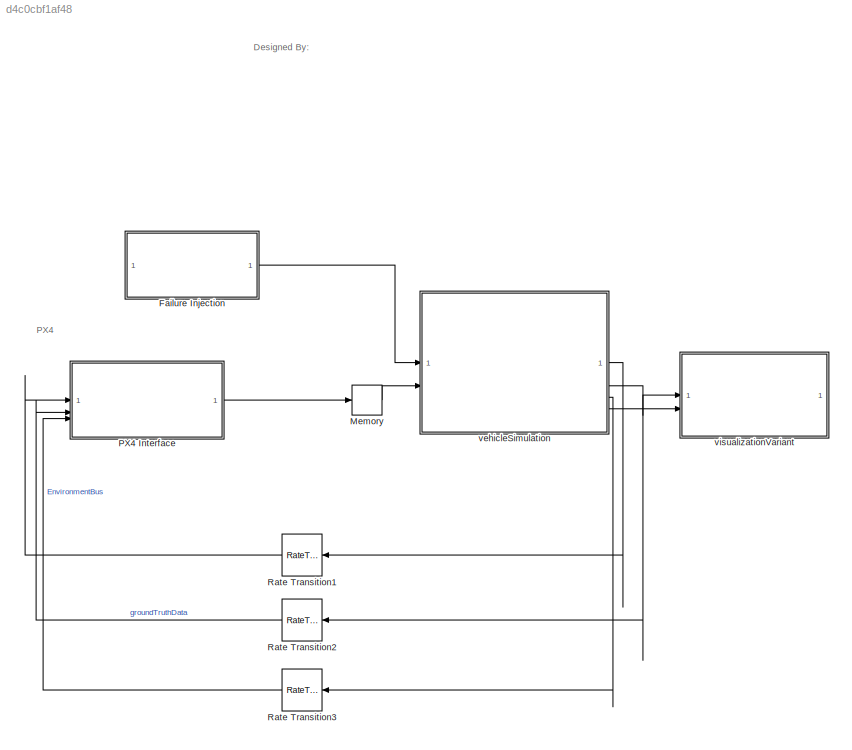
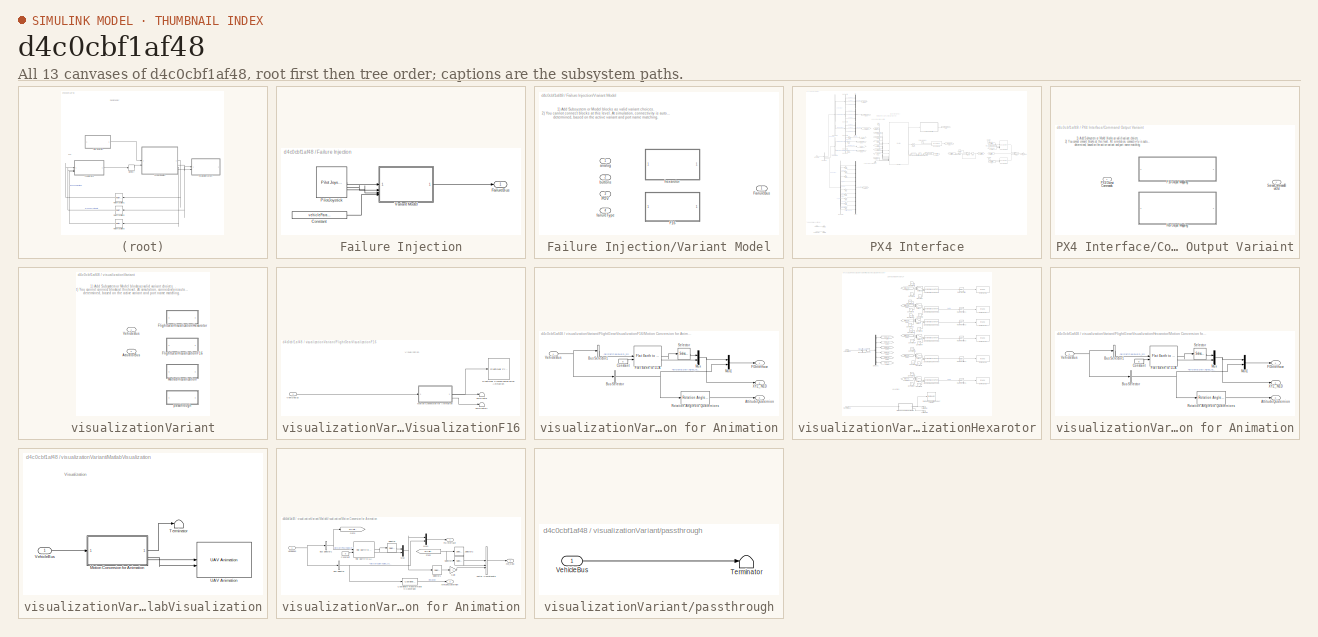
[diagram: thumbnail index - all 13 canvases of the model, root first then tree order]
MODEL slx_d4c0cbf1af48
KIND model
BLOCK [SubSystem] Failure Injection
BLOCK [Constant] Failure Injection/Constant
  Value = vehicleParams.failureType
BLOCK [Outport] Failure Injection/FailureBus
BLOCK [Reference] Failure Injection/PilotJoystick  REF=aerolibanimutils/Pilot Joystick
  LibrarySourceBlock = aerolibanimutils/Pilot Joystick All
  SourceBlock = aerolibanimutils/Pilot Joystick
  SourceType = PilotJoystick
BLOCK [SubSystem] Failure Injection/Variant Model
  Variant = on
BLOCK [ModelReference] Failure Injection/Variant Model/F16
  ModelNameDialog = failureInputReadF16.slx
  ModelReferenceVersion = 1.16
  VariantControl = strcmpi(vehicleParams.type ,"F-16")
BLOCK [Outport] Failure Injection/Variant Model/FailureBus
BLOCK [Inport] Failure Injection/Variant Model/POV
  Port = 3
BLOCK [Inport] Failure Injection/Variant Model/analog
BLOCK [Inport] Failure Injection/Variant Model/buttons
  Port = 2
BLOCK [Inport] Failure Injection/Variant Model/failureType
  Port = 4
BLOCK [ModelReference] Failure Injection/Variant Model/hexarotor
  DisableCoverage = on
  ModelNameDialog = failureInputReadHex.slx
  ModelReferenceVersion = 1.56
  VariantControl = strcmpi(vehicleParams.type ,"hexarotor")
BLOCK [Memory] Memory
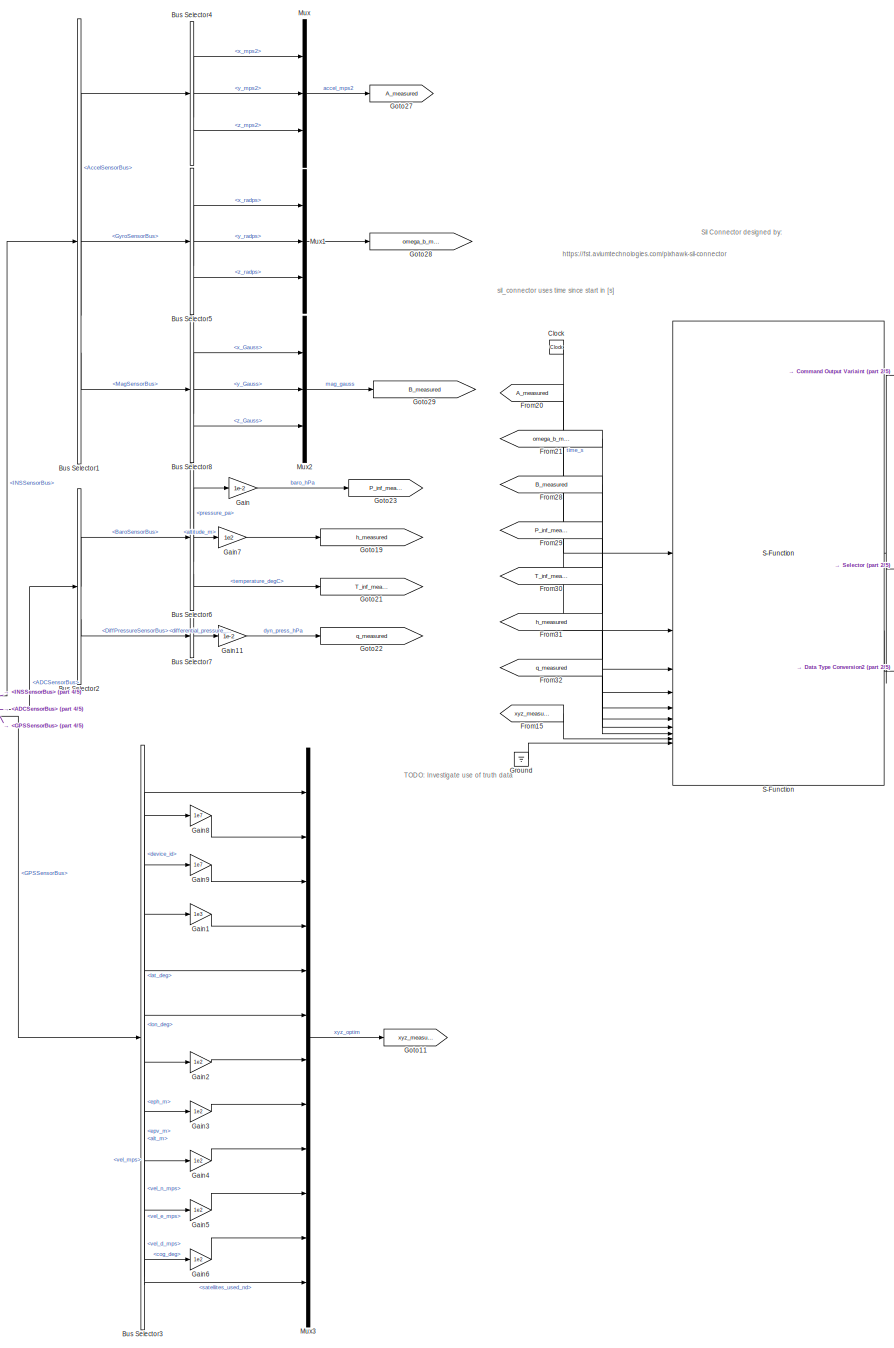
[diagram: PX4 Interface - part 1/5, left side, full height]
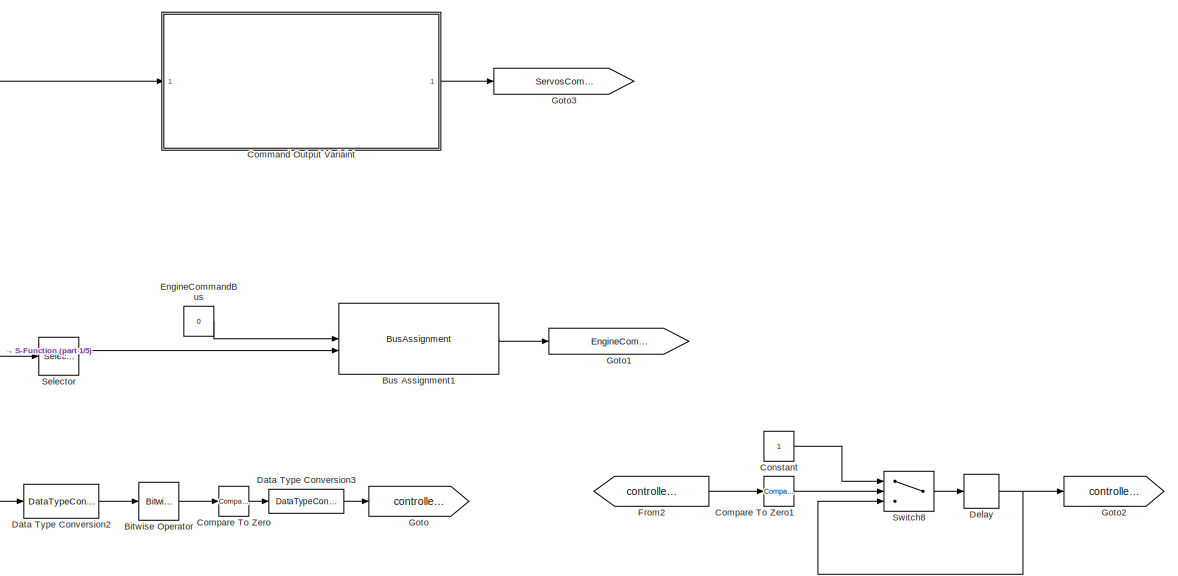
[diagram: PX4 Interface - part 2/5, central region]
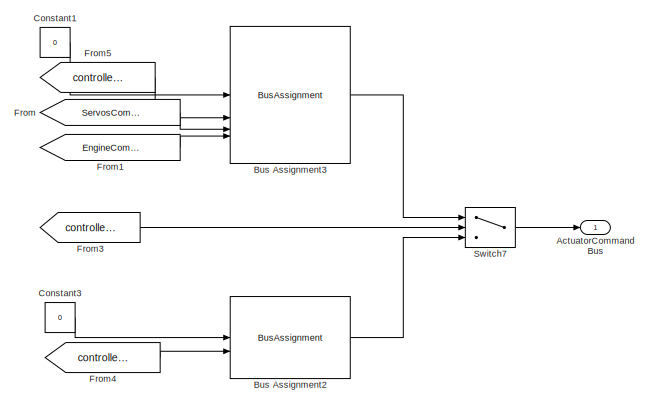
[diagram: PX4 Interface - part 3/5, middle right region]
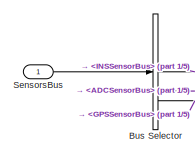
[diagram: PX4 Interface - part 4/5, middle left region]
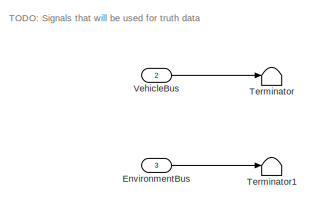
[diagram: PX4 Interface - part 5/5, bottom left region]
BLOCK [SubSystem] PX4 Interface
  VariantControl = strcmpi(vehicleParams.type, "F-16") & strcmpi(vehicleParams.controllerType, "PX4")
BLOCK [Outport] PX4 Interface/ActuatorCommandBus
  LockScale = on
  OutDataTypeStr = Bus: ActuatorCommandBus
BLOCK [Reference] PX4 Interface/Bitwise Operator  REF=simulink/Logic and Bit
Operations/Bitwise
Operator
  SourceBlock = simulink/Logic and Bit\nOperations/Bitwise\nOperator
  SourceType = Bitwise Operator
BLOCK [BusAssignment] PX4 Interface/Bus Assignment1
  AssignedSignals = cmdThrottle_unit
BLOCK [BusAssignment] PX4 Interface/Bus Assignment2
  AssignedSignals = controllerArmed
BLOCK [BusAssignment] PX4 Interface/Bus Assignment3
  AssignedSignals = controllerArmed,ServosCommandBus,EngineCommandBus
BLOCK [BusSelector] PX4 Interface/Bus Selector
  OutputSignals = INSSensorBus,ADCSensorBus,GPSSensorBus
BLOCK [BusSelector] PX4 Interface/Bus Selector1
  OutputSignals = AccelSensorBus,GyroSensorBus,MagSensorBus
BLOCK [BusSelector] PX4 Interface/Bus Selector2
  OutputSignals = BaroSensorBus,DiffPressureSensorBus
BLOCK [BusSelector] PX4 Interface/Bus Selector3
  OutputSignals = device_id,lat_deg,lon_deg,alt_m,eph_m,epv_m,vel_mps,vel_n_mps,vel_e_mps,vel_d_mps,cog_deg,satellites_used_nd
BLOCK [BusSelector] PX4 Interface/Bus Selector4
  OutputSignals = x_mps2,y_mps2,z_mps2
BLOCK [BusSelector] PX4 Interface/Bus Selector5
  OutputSignals = x_radps,y_radps,z_radps
BLOCK [BusSelector] PX4 Interface/Bus Selector6
  OutputSignals = pressure_pa,altitude_m,temperature_degC
BLOCK [BusSelector] PX4 Interface/Bus Selector7
  OutputSignals = differential_pressure_pa
BLOCK [BusSelector] PX4 Interface/Bus Selector8
  OutputSignals = x_Gauss,y_Gauss,z_Gauss
BLOCK [Clock] PX4 Interface/Clock
BLOCK [SubSystem] PX4 Interface/Command Output Variaint
  Variant = on
BLOCK [ModelReference] PX4 Interface/Command Output Variaint/F16 Output Mapping
  DisableCoverage = on
  ModelNameDialog = PX4OutputMappingF16.slx
  ModelReferenceVersion = 1.8
  VariantControl = strcmpi(vehicleParams.type, "F-16") & strcmpi(vehicleParams.controllerType, "PX4")
BLOCK [ModelReference] PX4 Interface/Command Output Variaint/Hex Output Mapping
  ModelNameDialog = PX4OutputMappingHex.slx
  ModelReferenceVersion = 1.15
  VariantControl = strcmpi(vehicleParams.type, "hexarotor") & strcmpi(vehicleParams.controllerType, "PX4")
BLOCK [Inport] PX4 Interface/Command Output Variaint/PX4 Output Commands
  PortDimensions = 16
BLOCK [Outport] PX4 Interface/Command Output Variaint/ServosCommandBusOut
  OutDataTypeStr = Bus: ServosCommandBus
BLOCK [Reference] PX4 Interface/Compare To Zero  REF=simulink/Logic and Bit
Operations/Compare
To Zero
  SourceBlock = simulink/Logic and Bit\nOperations/Compare\nTo Zero
  SourceType = Compare To Zero
BLOCK [Reference] PX4 Interface/Compare To Zero1  REF=simulink/Logic and Bit
Operations/Compare
To Zero
  SourceBlock = simulink/Logic and Bit\nOperations/Compare\nTo Zero
  SourceType = Compare To Zero
BLOCK [Constant] PX4 Interface/Constant
BLOCK [Constant] PX4 Interface/Constant1
  OutDataTypeStr = Bus: ActuatorCommandBus
  Value = 0
BLOCK [Constant] PX4 Interface/Constant3
  OutDataTypeStr = Bus: ActuatorCommandBus
  Value = 0
BLOCK [DataTypeConversion] PX4 Interface/Data Type Conversion2
  OutDataTypeStr = uint8
  RndMeth = Floor
  SaturateOnIntegerOverflow = off
BLOCK [DataTypeConversion] PX4 Interface/Data Type Conversion3
  OutDataTypeStr = double
  RndMeth = Floor
  SaturateOnIntegerOverflow = off
BLOCK [Delay] PX4 Interface/Delay
  DelayLength = 1
  InitialCondition = 0
  InputPortMap = u0
BLOCK [Constant] PX4 Interface/EngineCommandBus
  OutDataTypeStr = Bus: EngineCommandBus
  Value = 0
BLOCK [Inport] PX4 Interface/EnvironmentBus
  OutDataTypeStr = Bus: EnvironmentBus
  Port = 3
BLOCK [From] PX4 Interface/From
  GotoTag = ServosCommandBus
BLOCK [From] PX4 Interface/From1
  GotoTag = EngineCommandBus
BLOCK [From] PX4 Interface/From15
  GotoTag = xyz_measured
BLOCK [From] PX4 Interface/From2
  GotoTag = controllerArmed
BLOCK [From] PX4 Interface/From20
  GotoTag = A_measured
BLOCK [From] PX4 Interface/From21
  GotoTag = omega_b_measured
BLOCK [From] PX4 Interface/From28
  GotoTag = B_measured
BLOCK [From] PX4 Interface/From29
  GotoTag = P_inf_measured
BLOCK [From] PX4 Interface/From3
  GotoTag = controllerInitialized
BLOCK [From] PX4 Interface/From30
  GotoTag = T_inf_measured
BLOCK [From] PX4 Interface/From31
  GotoTag = h_measured
BLOCK [From] PX4 Interface/From32
  GotoTag = q_measured
BLOCK [From] PX4 Interface/From4
  GotoTag = controllerArmed
BLOCK [From] PX4 Interface/From5
  GotoTag = controllerArmed
BLOCK [Gain] PX4 Interface/Gain
  Gain = 1e-2
BLOCK [Gain] PX4 Interface/Gain1
  Gain = 1e3
BLOCK [Gain] PX4 Interface/Gain11
  Gain = 1e-2
BLOCK [Gain] PX4 Interface/Gain2
  Gain = 1e2
BLOCK [Gain] PX4 Interface/Gain3
  Gain = 1e2
BLOCK [Gain] PX4 Interface/Gain4
  Gain = 1e2
BLOCK [Gain] PX4 Interface/Gain5
  Gain = 1e2
BLOCK [Gain] PX4 Interface/Gain6
  Gain = 1e2
BLOCK [Gain] PX4 Interface/Gain7
  Gain = 1e2
BLOCK [Gain] PX4 Interface/Gain8
  Gain = 1e7
BLOCK [Gain] PX4 Interface/Gain9
  Gain = 1e7
BLOCK [Goto] PX4 Interface/Goto
  GotoTag = controllerArmed
BLOCK [Goto] PX4 Interface/Goto1
  GotoTag = EngineCommandBus
BLOCK [Goto] PX4 Interface/Goto11
  GotoTag = xyz_measured
BLOCK [Goto] PX4 Interface/Goto19
  GotoTag = h_measured
BLOCK [Goto] PX4 Interface/Goto2
  GotoTag = controllerInitialized
BLOCK [Goto] PX4 Interface/Goto21
  GotoTag = T_inf_measured
BLOCK [Goto] PX4 Interface/Goto22
  GotoTag = q_measured
BLOCK [Goto] PX4 Interface/Goto23
  GotoTag = P_inf_measured
BLOCK [Goto] PX4 Interface/Goto27
  GotoTag = A_measured
BLOCK [Goto] PX4 Interface/Goto28
  GotoTag = omega_b_measured
BLOCK [Goto] PX4 Interface/Goto29
  GotoTag = B_measured
BLOCK [Goto] PX4 Interface/Goto3
  GotoTag = ServosCommandBus
BLOCK [Ground] PX4 Interface/Ground
BLOCK [Mux] PX4 Interface/Mux
  DisplayOption = bar
  Inputs = 3
BLOCK [Mux] PX4 Interface/Mux1
  DisplayOption = bar
  Inputs = 3
BLOCK [Mux] PX4 Interface/Mux2
  DisplayOption = bar
  Inputs = 3
BLOCK [Mux] PX4 Interface/Mux3
  DisplayOption = bar
  Inputs = 12
BLOCK [S-Function] PX4 Interface/S-Function
  EnableBusSupport = off
  FunctionName = pixhawk_sil_connector
  SFcnIsStateOwnerBlock = off
  SFunctionDeploymentMode = off
BLOCK [Selector] PX4 Interface/Selector
  IndexOptions = Index vector (dialog)
  Indices = [1]
  InputPortWidth = 16
  OutputSizes = 1
BLOCK [Inport] PX4 Interface/SensorsBus
  OutDataTypeStr = Bus: SensorsBus
BLOCK [Switch] PX4 Interface/Switch7
  Criteria = u2 > Threshold
  InputSameDT = off
  SaturateOnIntegerOverflow = off
BLOCK [Switch] PX4 Interface/Switch8
  Criteria = u2 > Threshold
  InputSameDT = off
  SaturateOnIntegerOverflow = off
BLOCK [Terminator] PX4 Interface/Terminator
BLOCK [Terminator] PX4 Interface/Terminator1
BLOCK [Inport] PX4 Interface/VehicleBus
  OutDataTypeStr = Bus: VehicleBus
  Port = 2
BLOCK [RateTransition] Rate Transition1
BLOCK [RateTransition] Rate Transition2
BLOCK [RateTransition] Rate Transition3
BLOCK [ModelReference] vehicleSimulation
  ModelNameDialog = VehiclePlant.slx
  ModelReferenceVersion = 1.47
BLOCK [SubSystem] visualizationVariant
  Variant = on
BLOCK [Inport] visualizationVariant/ActuatorBus
  Port = 2
BLOCK [SubSystem] visualizationVariant/FlightGearVisualizationF16
  TreatAsAtomicUnit = on
  VariantControl = strcmpi(opts.visualizationType, "FlightGear") && strcmpi (vehicleParams.type, "F-16")
BLOCK [Reference] visualizationVariant/FlightGearVisualizationF16/FlightGear Preconfigured 6DoF Animation  REF=aerolibfltsims/FlightGear
Preconfigured
6DoF Animation
  SourceBlock = aerolibfltsims/FlightGear\nPreconfigured\n6DoF Animation
  SourceType = FlightGearQuick6DoFAnimation
BLOCK [SubSystem] visualizationVariant/FlightGearVisualizationF16/Motion Conversion for Animation
BLOCK [Outport] visualizationVariant/FlightGearVisualizationF16/Motion Conversion for Animation/AttitudeQuaternion
  Port = 3
  VectorParamsAs1DForOutWhenUnconnected = off
BLOCK [BusSelector] visualizationVariant/FlightGearVisualizationF16/Motion Conversion for Animation/Bus Selector
  OutputSignals = BodyStatesBus.aircraftEulerAngles_rad
BLOCK [BusSelector] visualizationVariant/FlightGearVisualizationF16/Motion Conversion for Animation/Bus Selector1
  OutputSignals = BodyStatesBus.aircraftPosInNED_m
BLOCK [Constant] visualizationVariant/FlightGearVisualizationF16/Motion Conversion for Animation/Constant
  Value = 0
BLOCK [Outport] visualizationVariant/FlightGearVisualizationF16/Motion Conversion for Animation/FGInterface
  VectorParamsAs1DForOutWhenUnconnected = off
BLOCK [Reference] visualizationVariant/FlightGearVisualizationF16/Motion Conversion for Animation/Flat Earth to LLA  REF=aerolibtransform2/Flat Earth to LLA
  SourceBlock = aerolibtransform2/Flat Earth to LLA
  SourceType = Flat Earth to LLA
BLOCK [Mux] visualizationVariant/FlightGearVisualizationF16/Motion Conversion for Animation/Mux
  DisplayOption = bar
  Inputs = 2
BLOCK [Mux] visualizationVariant/FlightGearVisualizationF16/Motion Conversion for Animation/Mux1
  DisplayOption = bar
  Inputs = 2
BLOCK [Reference] visualizationVariant/FlightGearVisualizationF16/Motion Conversion for Animation/Rotation Angles to Quaternions  REF=sharedtransform/Rotation Angles to Quaternions
  AttributesFormatString = Rotation Order: %<rotationOrder>
  LibrarySourceBlock = aerolibtransform2/Rotation Angles to Quaternions
  SourceBlock = sharedtransform/Rotation Angles to Quaternions
  SourceType = Ang2Quat
BLOCK [Selector] visualizationVariant/FlightGearVisualizationF16/Motion Conversion for Animation/Selector
  IndexMode = Zero-based
  IndexOptions = Index vector (dialog)
  Indices = [1 0]
  InputPortWidth = 2
  OutputSizes = 1
BLOCK [Inport] visualizationVariant/FlightGearVisualizationF16/Motion Conversion for Animation/VehicleBus
  OutDataTypeStr = Bus: VehicleBus
BLOCK [Outport] visualizationVariant/FlightGearVisualizationF16/Motion Conversion for Animation/XYZ_NED
  Port = 2
  VectorParamsAs1DForOutWhenUnconnected = off
BLOCK [Terminator] visualizationVariant/FlightGearVisualizationF16/Terminator
BLOCK [Terminator] visualizationVariant/FlightGearVisualizationF16/Terminator1
BLOCK [Inport] visualizationVariant/FlightGearVisualizationF16/VehicleBus
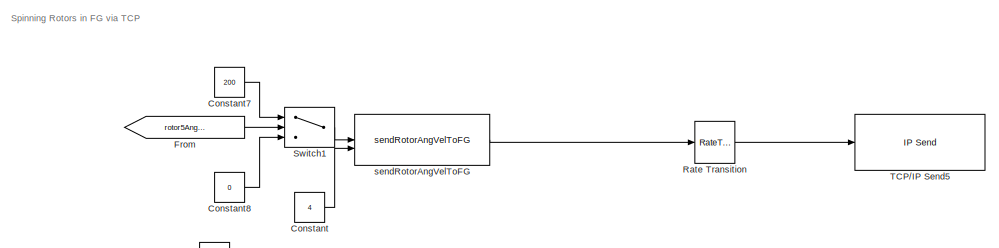
[diagram: visualizationVariant/FlightGearVisualizationHexarotor - part 1/3, top center region]
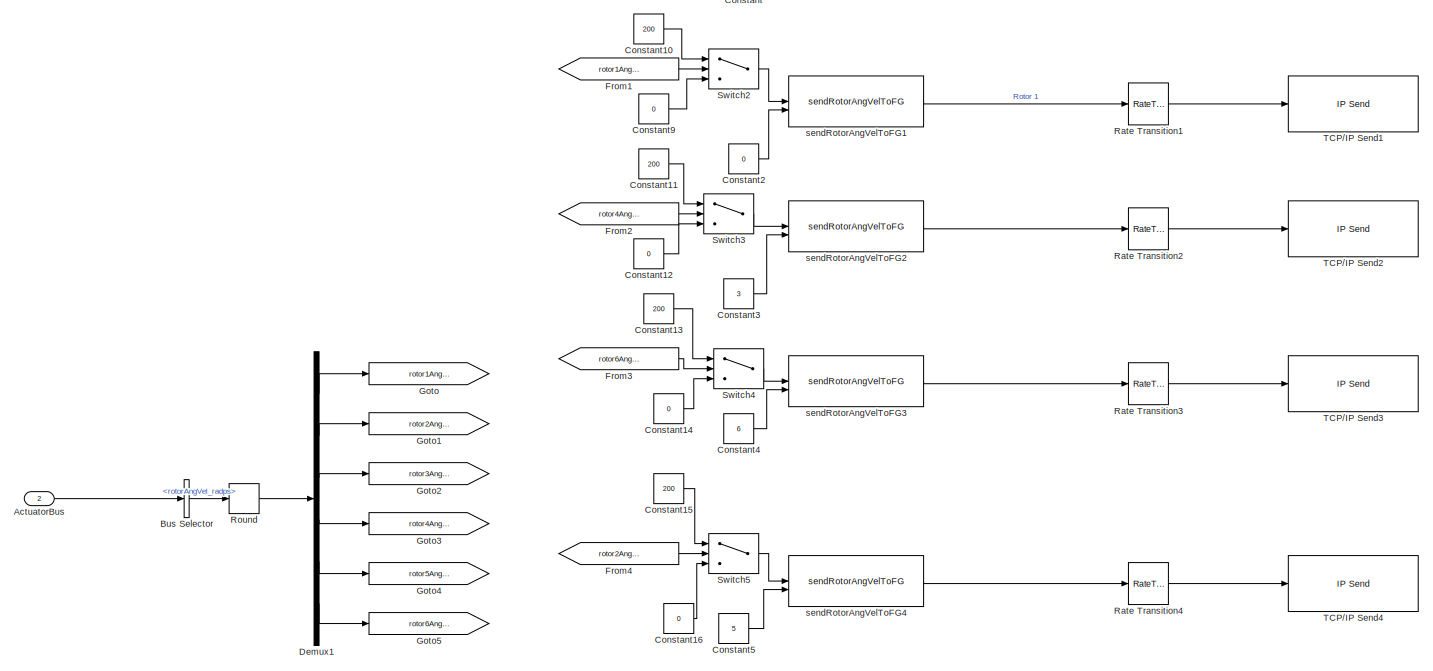
[diagram: visualizationVariant/FlightGearVisualizationHexarotor - part 2/3, full width, middle band]
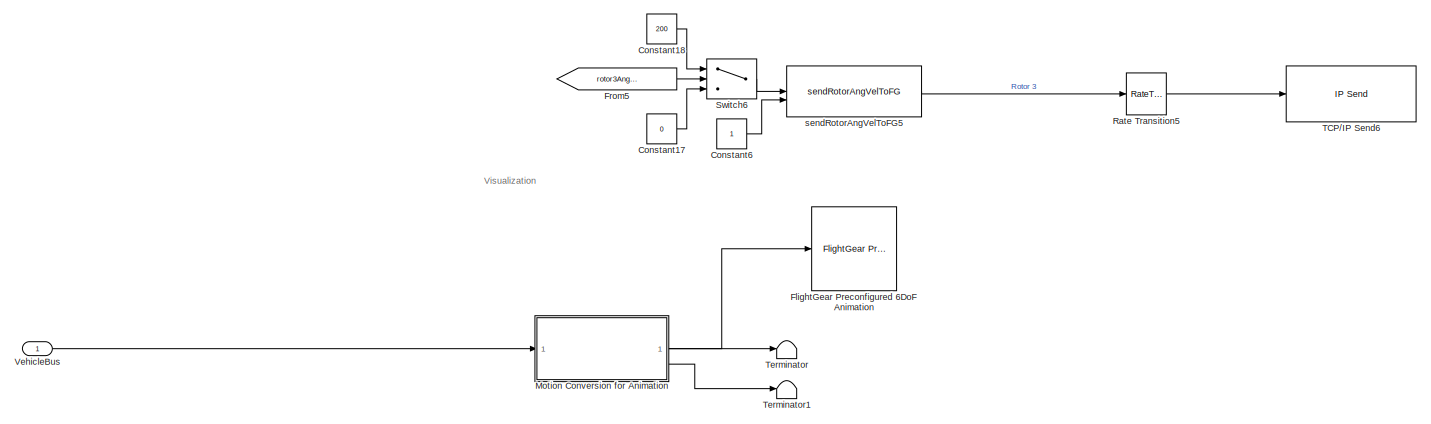
[diagram: visualizationVariant/FlightGearVisualizationHexarotor - part 3/3, full width, bottom band]
BLOCK [SubSystem] visualizationVariant/FlightGearVisualizationHexarotor
  TreatAsAtomicUnit = on
  VariantControl = strcmpi(opts.visualizationType, "FlightGear") && strcmpi (vehicleParams.type, "hexarotor")
BLOCK [Inport] visualizationVariant/FlightGearVisualizationHexarotor/ActuatorBus
  OutDataTypeStr = Bus:ActuatorBus
  Port = 2
BLOCK [BusSelector] visualizationVariant/FlightGearVisualizationHexarotor/Bus Selector
  OutputSignals = PropulsionBus.rotorAngVel_radps
BLOCK [Constant] visualizationVariant/FlightGearVisualizationHexarotor/Constant
  Value = 4
BLOCK [Constant] visualizationVariant/FlightGearVisualizationHexarotor/Constant10
  Value = 200
BLOCK [Constant] visualizationVariant/FlightGearVisualizationHexarotor/Constant11
  Value = 200
BLOCK [Constant] visualizationVariant/FlightGearVisualizationHexarotor/Constant12
  Value = 0
BLOCK [Constant] visualizationVariant/FlightGearVisualizationHexarotor/Constant13
  Value = 200
BLOCK [Constant] visualizationVariant/FlightGearVisualizationHexarotor/Constant14
  Value = 0
BLOCK [Constant] visualizationVariant/FlightGearVisualizationHexarotor/Constant15
  Value = 200
BLOCK [Constant] visualizationVariant/FlightGearVisualizationHexarotor/Constant16
  Value = 0
BLOCK [Constant] visualizationVariant/FlightGearVisualizationHexarotor/Constant17
  Value = 0
BLOCK [Constant] visualizationVariant/FlightGearVisualizationHexarotor/Constant18
  Value = 200
BLOCK [Constant] visualizationVariant/FlightGearVisualizationHexarotor/Constant2
  Value = 0
BLOCK [Constant] visualizationVariant/FlightGearVisualizationHexarotor/Constant3
  Value = 3
BLOCK [Constant] visualizationVariant/FlightGearVisualizationHexarotor/Constant4
  Value = 6
BLOCK [Constant] visualizationVariant/FlightGearVisualizationHexarotor/Constant5
  Value = 5
BLOCK [Constant] visualizationVariant/FlightGearVisualizationHexarotor/Constant6
BLOCK [Constant] visualizationVariant/FlightGearVisualizationHexarotor/Constant7
  Value = 200
BLOCK [Constant] visualizationVariant/FlightGearVisualizationHexarotor/Constant8
  Value = 0
BLOCK [Constant] visualizationVariant/FlightGearVisualizationHexarotor/Constant9
  Value = 0
BLOCK [Demux] visualizationVariant/FlightGearVisualizationHexarotor/Demux1
  Outputs = 6
BLOCK [Reference] visualizationVariant/FlightGearVisualizationHexarotor/FlightGear Preconfigured 6DoF Animation  REF=aerolibfltsims/FlightGear
Preconfigured
6DoF Animation
  SourceBlock = aerolibfltsims/FlightGear\nPreconfigured\n6DoF Animation
  SourceType = FlightGearQuick6DoFAnimation
BLOCK [From] visualizationVariant/FlightGearVisualizationHexarotor/From
  GotoTag = rotor5AngVel_radps
BLOCK [From] visualizationVariant/FlightGearVisualizationHexarotor/From1
  GotoTag = rotor1AngVel_radps
BLOCK [From] visualizationVariant/FlightGearVisualizationHexarotor/From2
  GotoTag = rotor4AngVel_radps
BLOCK [From] visualizationVariant/FlightGearVisualizationHexarotor/From3
  GotoTag = rotor6AngVel_radps
BLOCK [From] visualizationVariant/FlightGearVisualizationHexarotor/From4
  GotoTag = rotor2AngVel_radps
BLOCK [From] visualizationVariant/FlightGearVisualizationHexarotor/From5
  GotoTag = rotor3AngVel_radps
BLOCK [Goto] visualizationVariant/FlightGearVisualizationHexarotor/Goto
  GotoTag = rotor1AngVel_radps
BLOCK [Goto] visualizationVariant/FlightGearVisualizationHexarotor/Goto1
  GotoTag = rotor2AngVel_radps
BLOCK [Goto] visualizationVariant/FlightGearVisualizationHexarotor/Goto2
  GotoTag = rotor3AngVel_radps
BLOCK [Goto] visualizationVariant/FlightGearVisualizationHexarotor/Goto3
  GotoTag = rotor4AngVel_radps
BLOCK [Goto] visualizationVariant/FlightGearVisualizationHexarotor/Goto4
  GotoTag = rotor5AngVel_radps
BLOCK [Goto] visualizationVariant/FlightGearVisualizationHexarotor/Goto5
  GotoTag = rotor6AngVel_radps
BLOCK [SubSystem] visualizationVariant/FlightGearVisualizationHexarotor/Motion Conversion for Animation
BLOCK [Outport] visualizationVariant/FlightGearVisualizationHexarotor/Motion Conversion for Animation/AttitudeQuaternion
  Port = 3
  VectorParamsAs1DForOutWhenUnconnected = off
BLOCK [BusSelector] visualizationVariant/FlightGearVisualizationHexarotor/Motion Conversion for Animation/Bus Selector
  OutputSignals = BodyStatesBus.aircraftEulerAngles_rad
BLOCK [BusSelector] visualizationVariant/FlightGearVisualizationHexarotor/Motion Conversion for Animation/Bus Selector1
  OutputSignals = BodyStatesBus.aircraftPosInNED_m
BLOCK [Constant] visualizationVariant/FlightGearVisualizationHexarotor/Motion Conversion for Animation/Constant
  Value = 0
BLOCK [Outport] visualizationVariant/FlightGearVisualizationHexarotor/Motion Conversion for Animation/FGInterface
  VectorParamsAs1DForOutWhenUnconnected = off
BLOCK [Reference] visualizationVariant/FlightGearVisualizationHexarotor/Motion Conversion for Animation/Flat Earth to LLA  REF=aerolibtransform2/Flat Earth to LLA
  SourceBlock = aerolibtransform2/Flat Earth to LLA
  SourceType = Flat Earth to LLA
BLOCK [Mux] visualizationVariant/FlightGearVisualizationHexarotor/Motion Conversion for Animation/Mux
  DisplayOption = bar
  Inputs = 2
BLOCK [Mux] visualizationVariant/FlightGearVisualizationHexarotor/Motion Conversion for Animation/Mux1
  DisplayOption = bar
  Inputs = 2
BLOCK [Reference] visualizationVariant/FlightGearVisualizationHexarotor/Motion Conversion for Animation/Rotation Angles to Quaternions  REF=sharedtransform/Rotation Angles to Quaternions
  AttributesFormatString = Rotation Order: %<rotationOrder>
  LibrarySourceBlock = aerolibtransform2/Rotation Angles to Quaternions
  SourceBlock = sharedtransform/Rotation Angles to Quaternions
  SourceType = Ang2Quat
BLOCK [Selector] visualizationVariant/FlightGearVisualizationHexarotor/Motion Conversion for Animation/Selector
  IndexMode = Zero-based
  IndexOptions = Index vector (dialog)
  Indices = [1 0]
  InputPortWidth = 2
  OutputSizes = 1
BLOCK [Inport] visualizationVariant/FlightGearVisualizationHexarotor/Motion Conversion for Animation/VehicleBus
  OutDataTypeStr = Bus: VehicleBus
BLOCK [Outport] visualizationVariant/FlightGearVisualizationHexarotor/Motion Conversion for Animation/XYZ_NED
  Port = 2
  VectorParamsAs1DForOutWhenUnconnected = off
BLOCK [RateTransition] visualizationVariant/FlightGearVisualizationHexarotor/Rate Transition
  OutPortSampleTime = visualizationParams.flightGearFreq_Hz
BLOCK [RateTransition] visualizationVariant/FlightGearVisualizationHexarotor/Rate Transition1
  OutPortSampleTime = visualizationParams.flightGearFreq_Hz
BLOCK [RateTransition] visualizationVariant/FlightGearVisualizationHexarotor/Rate Transition2
  OutPortSampleTime = visualizationParams.flightGearFreq_Hz
BLOCK [RateTransition] visualizationVariant/FlightGearVisualizationHexarotor/Rate Transition3
  OutPortSampleTime = visualizationParams.flightGearFreq_Hz
BLOCK [RateTransition] visualizationVariant/FlightGearVisualizationHexarotor/Rate Transition4
  OutPortSampleTime = visualizationParams.flightGearFreq_Hz
BLOCK [RateTransition] visualizationVariant/FlightGearVisualizationHexarotor/Rate Transition5
  OutPortSampleTime = visualizationParams.flightGearFreq_Hz
BLOCK [Rounding] visualizationVariant/FlightGearVisualizationHexarotor/Round
  Operator = round
BLOCK [Switch] visualizationVariant/FlightGearVisualizationHexarotor/Switch1
  Criteria = u2 > Threshold
  InputSameDT = off
  SaturateOnIntegerOverflow = off
BLOCK [Switch] visualizationVariant/FlightGearVisualizationHexarotor/Switch2
  Criteria = u2 > Threshold
  InputSameDT = off
  SaturateOnIntegerOverflow = off
BLOCK [Switch] visualizationVariant/FlightGearVisualizationHexarotor/Switch3
  Criteria = u2 > Threshold
  InputSameDT = off
  SaturateOnIntegerOverflow = off
BLOCK [Switch] visualizationVariant/FlightGearVisualizationHexarotor/Switch4
  Criteria = u2 > Threshold
  InputSameDT = off
  SaturateOnIntegerOverflow = off
BLOCK [Switch] visualizationVariant/FlightGearVisualizationHexarotor/Switch5
  Criteria = u2 > Threshold
  InputSameDT = off
  SaturateOnIntegerOverflow = off
BLOCK [Switch] visualizationVariant/FlightGearVisualizationHexarotor/Switch6
  Criteria = u2 > Threshold
  InputSameDT = off
  SaturateOnIntegerOverflow = off
BLOCK [Reference] visualizationVariant/FlightGearVisualizationHexarotor/TCP//IP Send1  REF=instrumentlib/TCP//IP Send
  SourceBlock = instrumentlib/TCP//IP Send
  SourceType = instrument.system.TCPIPSend
BLOCK [Reference] visualizationVariant/FlightGearVisualizationHexarotor/TCP//IP Send2  REF=instrumentlib/TCP//IP Send
  SourceBlock = instrumentlib/TCP//IP Send
  SourceType = instrument.system.TCPIPSend
BLOCK [Reference] visualizationVariant/FlightGearVisualizationHexarotor/TCP//IP Send3  REF=instrumentlib/TCP//IP Send
  SourceBlock = instrumentlib/TCP//IP Send
  SourceType = instrument.system.TCPIPSend
BLOCK [Reference] visualizationVariant/FlightGearVisualizationHexarotor/TCP//IP Send4  REF=instrumentlib/TCP//IP Send
  SourceBlock = instrumentlib/TCP//IP Send
  SourceType = instrument.system.TCPIPSend
BLOCK [Reference] visualizationVariant/FlightGearVisualizationHexarotor/TCP//IP Send5  REF=instrumentlib/TCP//IP Send
  SourceBlock = instrumentlib/TCP//IP Send
  SourceType = instrument.system.TCPIPSend
BLOCK [Reference] visualizationVariant/FlightGearVisualizationHexarotor/TCP//IP Send6  REF=instrumentlib/TCP//IP Send
  SourceBlock = instrumentlib/TCP//IP Send
  SourceType = instrument.system.TCPIPSend
BLOCK [Terminator] visualizationVariant/FlightGearVisualizationHexarotor/Terminator
BLOCK [Terminator] visualizationVariant/FlightGearVisualizationHexarotor/Terminator1
BLOCK [Inport] visualizationVariant/FlightGearVisualizationHexarotor/VehicleBus
BLOCK [Reference] visualizationVariant/FlightGearVisualizationHexarotor/sendRotorAngVelToFG  REF=flightGearInterfaceLibrary/sendRotorAngVelToFG
  SourceBlock = flightGearInterfaceLibrary/sendRotorAngVelToFG
  SourceType = SubSystem
BLOCK [Reference] visualizationVariant/FlightGearVisualizationHexarotor/sendRotorAngVelToFG1  REF=flightGearInterfaceLibrary/sendRotorAngVelToFG
  SourceBlock = flightGearInterfaceLibrary/sendRotorAngVelToFG
  SourceType = SubSystem
BLOCK [Reference] visualizationVariant/FlightGearVisualizationHexarotor/sendRotorAngVelToFG2  REF=flightGearInterfaceLibrary/sendRotorAngVelToFG
  SourceBlock = flightGearInterfaceLibrary/sendRotorAngVelToFG
  SourceType = SubSystem
BLOCK [Reference] visualizationVariant/FlightGearVisualizationHexarotor/sendRotorAngVelToFG3  REF=flightGearInterfaceLibrary/sendRotorAngVelToFG
  SourceBlock = flightGearInterfaceLibrary/sendRotorAngVelToFG
  SourceType = SubSystem
BLOCK [Reference] visualizationVariant/FlightGearVisualizationHexarotor/sendRotorAngVelToFG4  REF=flightGearInterfaceLibrary/sendRotorAngVelToFG
  SourceBlock = flightGearInterfaceLibrary/sendRotorAngVelToFG
  SourceType = SubSystem
BLOCK [Reference] visualizationVariant/FlightGearVisualizationHexarotor/sendRotorAngVelToFG5  REF=flightGearInterfaceLibrary/sendRotorAngVelToFG
  SourceBlock = flightGearInterfaceLibrary/sendRotorAngVelToFG
  SourceType = SubSystem
BLOCK [SubSystem] visualizationVariant/MatlabVisualization
  VariantControl = strcmpi(opts.visualizationType, "Matlab")
BLOCK [SubSystem] visualizationVariant/MatlabVisualization/Motion Conversion for Animation
BLOCK [Outport] visualizationVariant/MatlabVisualization/Motion Conversion for Animation/AttitudeQuaternion
  Port = 3
  VectorParamsAs1DForOutWhenUnconnected = off
BLOCK [BusSelector] visualizationVariant/MatlabVisualization/Motion Conversion for Animation/Bus Selector
  OutputSignals = BodyStates.aircraftEulerAngles_rad
BLOCK [BusSelector] visualizationVariant/MatlabVisualization/Motion Conversion for Animation/Bus Selector1
  OutputSignals = BodyStates.aircraftPosInNED_m
BLOCK [Constant] visualizationVariant/MatlabVisualization/Motion Conversion for Animation/Constant
  Value = 0
BLOCK [Reference] visualizationVariant/MatlabVisualization/Motion Conversion for Animation/Coordinate Transformation Conversion  REF=robotcorelib/Coordinate Transformation Conversion
  NameLocation = top
  SourceBlock = robotcorelib/Coordinate Transformation Conversion
  SourceType = robotics.slcore.internal.block.CoordinateTransformationConversion
BLOCK [Outport] visualizationVariant/MatlabVisualization/Motion Conversion for Animation/FGInterface
  VectorParamsAs1DForOutWhenUnconnected = off
BLOCK [Reference] visualizationVariant/MatlabVisualization/Motion Conversion for Animation/Flat Earth to LLA  REF=aerolibtransform2/Flat Earth to LLA
  SourceBlock = aerolibtransform2/Flat Earth to LLA
  SourceType = Flat Earth to LLA
BLOCK [From] visualizationVariant/MatlabVisualization/Motion Conversion for Animation/From
  GotoTag = aircraftPosInNED_m
BLOCK [Gain] visualizationVariant/MatlabVisualization/Motion Conversion for Animation/Gain
  Gain = -1
BLOCK [Goto] visualizationVariant/MatlabVisualization/Motion Conversion for Animation/Goto
  GotoTag = aircraftPosInNED_m
BLOCK [Mux] visualizationVariant/MatlabVisualization/Motion Conversion for Animation/Mux
  DisplayOption = bar
  Inputs = 2
BLOCK [Mux] visualizationVariant/MatlabVisualization/Motion Conversion for Animation/Mux1
  DisplayOption = bar
  Inputs = 2
BLOCK [Selector] visualizationVariant/MatlabVisualization/Motion Conversion for Animation/Selector
  IndexMode = Zero-based
  IndexOptions = Index vector (dialog)
  Indices = [1 0]
  InputPortWidth = 2
  OutputSizes = 1
BLOCK [Selector] visualizationVariant/MatlabVisualization/Motion Conversion for Animation/Selector1
  IndexOptions = Index vector (dialog)
  Indices = 3
  InputPortWidth = 3
  OutputSizes = 1
BLOCK [Selector] visualizationVariant/MatlabVisualization/Motion Conversion for Animation/Selector2
  IndexOptions = Index vector (dialog)
  Indices = 1
  InputPortWidth = 3
  OutputSizes = 1
BLOCK [Selector] visualizationVariant/MatlabVisualization/Motion Conversion for Animation/Selector3
  IndexOptions = Index vector (dialog)
  Indices = 2
  InputPortWidth = 3
  OutputSizes = 1
BLOCK [Concatenate] visualizationVariant/MatlabVisualization/Motion Conversion for Animation/Vector Concatenate
  NumInputs = 3
BLOCK [Inport] visualizationVariant/MatlabVisualization/Motion Conversion for Animation/VehicleBus
  OutDataTypeStr = Bus: VehicleBus
BLOCK [Outport] visualizationVariant/MatlabVisualization/Motion Conversion for Animation/XYZ_NED
  Port = 2
  VectorParamsAs1DForOutWhenUnconnected = off
BLOCK [Terminator] visualizationVariant/MatlabVisualization/Terminator
BLOCK [Reference] visualizationVariant/MatlabVisualization/UAV Animation  REF=uavutilslib/UAV Animation
  SourceBlock = uavutilslib/UAV Animation
  SourceType = uav.sluav.internal.system.UAVAnimation
BLOCK [Inport] visualizationVariant/MatlabVisualization/VehicleBus
BLOCK [Inport] visualizationVariant/VehicleBus
BLOCK [SubSystem] visualizationVariant/passthrough
  VariantControl = strcmpi(opts.visualizationType, "PassThrough")
BLOCK [Terminator] visualizationVariant/passthrough/Terminator
BLOCK [Inport] visualizationVariant/passthrough/VehicleBus
ANNOTATION (root): Designed By:
ANNOTATION (root): PX4
ANNOTATION Failure Injection/Variant Model: 1) Add Subsystem or Model blocks as valid variant choices. 2) You cannot connect blocks at this level. At simulation, connectivity is automatically determined, based on the active variant and port name matching.
ANNOTATION PX4 Interface: https://fst.aviumtechnologies.com/pixhawk-sil-connector
ANNOTATION PX4 Interface: Sil Connector designed by:
ANNOTATION PX4 Interface: TODO: Investigate use of truth data
ANNOTATION PX4 Interface: TODO: Signals that will be used for truth data
ANNOTATION PX4 Interface: sil_connector uses time since start in [s]
ANNOTATION PX4 Interface/Command Output Variaint: 1) Add Subsystem or Model blocks as valid variant choices. 2) You cannot connect blocks at this level. At simulation, connectivity is automatically determined, based on the active variant and port name matching.
ANNOTATION visualizationVariant: 1) Add Subsystem or Model blocks as valid variant choices. 2) You cannot connect blocks at this level. At simulation, connectivity is automatically determined, based on the active variant and port name matching.
ANNOTATION visualizationVariant/FlightGearVisualizationF16: Visualization
ANNOTATION visualizationVariant/FlightGearVisualizationHexarotor: Spinning Rotors in FG via TCP
ANNOTATION visualizationVariant/FlightGearVisualizationHexarotor: Visualization
ANNOTATION visualizationVariant/MatlabVisualization: Visualization
LINE Failure Injection/Constant:1 -> Failure Injection/Variant Model:4
LINE Failure Injection/PilotJoystick:1 -> Failure Injection/Variant Model:1
LINE Failure Injection/PilotJoystick:2 -> Failure Injection/Variant Model:2
LINE Failure Injection/PilotJoystick:3 -> Failure Injection/Variant Model:3
LINE Failure Injection/Variant Model:1 -> Failure Injection/FailureBus:1
LINE Failure Injection:1 -> vehicleSimulation:1
LINE Memory:1 -> vehicleSimulation:2
LINE PX4 Interface/Bitwise Operator:1 -> PX4 Interface/Compare To Zero:1
LINE PX4 Interface/Bus Assignment1:1 -> PX4 Interface/Goto1:1
LINE PX4 Interface/Bus Assignment2:1 -> PX4 Interface/Switch7:3
LINE PX4 Interface/Bus Assignment3:1 -> PX4 Interface/Switch7:1
LINE PX4 Interface/Bus Selector1:1 -> PX4 Interface/Bus Selector4:1
LINE PX4 Interface/Bus Selector1:2 -> PX4 Interface/Bus Selector5:1
LINE PX4 Interface/Bus Selector1:3 -> PX4 Interface/Bus Selector8:1
LINE PX4 Interface/Bus Selector2:1 -> PX4 Interface/Bus Selector6:1
LINE PX4 Interface/Bus Selector2:2 -> PX4 Interface/Bus Selector7:1
LINE PX4 Interface/Bus Selector3:1 -> PX4 Interface/Mux3:1
LINE PX4 Interface/Bus Selector3:10 -> PX4 Interface/Gain5:1
LINE PX4 Interface/Bus Selector3:11 -> PX4 Interface/Gain6:1
LINE PX4 Interface/Bus Selector3:12 -> PX4 Interface/Mux3:12
LINE PX4 Interface/Bus Selector3:2 -> PX4 Interface/Gain8:1
LINE PX4 Interface/Bus Selector3:3 -> PX4 Interface/Gain9:1
LINE PX4 Interface/Bus Selector3:4 -> PX4 Interface/Gain1:1
LINE PX4 Interface/Bus Selector3:5 -> PX4 Interface/Mux3:5
LINE PX4 Interface/Bus Selector3:6 -> PX4 Interface/Mux3:6
LINE PX4 Interface/Bus Selector3:7 -> PX4 Interface/Gain2:1
LINE PX4 Interface/Bus Selector3:8 -> PX4 Interface/Gain3:1
LINE PX4 Interface/Bus Selector3:9 -> PX4 Interface/Gain4:1
LINE PX4 Interface/Bus Selector4:1 -> PX4 Interface/Mux:1
LINE PX4 Interface/Bus Selector4:2 -> PX4 Interface/Mux:2
LINE PX4 Interface/Bus Selector4:3 -> PX4 Interface/Mux:3
LINE PX4 Interface/Bus Selector5:1 -> PX4 Interface/Mux1:1
LINE PX4 Interface/Bus Selector5:2 -> PX4 Interface/Mux1:2
LINE PX4 Interface/Bus Selector5:3 -> PX4 Interface/Mux1:3
LINE PX4 Interface/Bus Selector6:1 -> PX4 Interface/Gain:1
LINE PX4 Interface/Bus Selector6:2 -> PX4 Interface/Gain7:1
LINE PX4 Interface/Bus Selector6:3 -> PX4 Interface/Goto21:1
LINE PX4 Interface/Bus Selector7:1 -> PX4 Interface/Gain11:1
LINE PX4 Interface/Bus Selector8:1 -> PX4 Interface/Mux2:1
LINE PX4 Interface/Bus Selector8:2 -> PX4 Interface/Mux2:2
LINE PX4 Interface/Bus Selector8:3 -> PX4 Interface/Mux2:3
LINE PX4 Interface/Bus Selector:1 -> PX4 Interface/Bus Selector1:1
LINE PX4 Interface/Bus Selector:2 -> PX4 Interface/Bus Selector2:1
LINE PX4 Interface/Bus Selector:3 -> PX4 Interface/Bus Selector3:1
LINE PX4 Interface/Clock:1 -> PX4 Interface/S-Function:1
LINE PX4 Interface/Command Output Variaint:1 -> PX4 Interface/Goto3:1
LINE PX4 Interface/Compare To Zero1:1 -> PX4 Interface/Switch8:2
LINE PX4 Interface/Compare To Zero:1 -> PX4 Interface/Data Type Conversion3:1
LINE PX4 Interface/Constant1:1 -> PX4 Interface/Bus Assignment3:1
LINE PX4 Interface/Constant3:1 -> PX4 Interface/Bus Assignment2:1
LINE PX4 Interface/Constant:1 -> PX4 Interface/Switch8:1
LINE PX4 Interface/Data Type Conversion2:1 -> PX4 Interface/Bitwise Operator:1
LINE PX4 Interface/Data Type Conversion3:1 -> PX4 Interface/Goto:1
NET PX4 Interface/Delay:1 -> PX4 Interface/Goto2:1, PX4 Interface/Switch8:3
LINE PX4 Interface/EngineCommandBus:1 -> PX4 Interface/Bus Assignment1:1
LINE PX4 Interface/EnvironmentBus:1 -> PX4 Interface/Terminator1:1
LINE PX4 Interface/From15:1 -> PX4 Interface/S-Function:9
LINE PX4 Interface/From1:1 -> PX4 Interface/Bus Assignment3:4
LINE PX4 Interface/From20:1 -> PX4 Interface/S-Function:2
LINE PX4 Interface/From21:1 -> PX4 Interface/S-Function:3
LINE PX4 Interface/From28:1 -> PX4 Interface/S-Function:4
LINE PX4 Interface/From29:1 -> PX4 Interface/S-Function:5
LINE PX4 Interface/From2:1 -> PX4 Interface/Compare To Zero1:1
LINE PX4 Interface/From30:1 -> PX4 Interface/S-Function:6
LINE PX4 Interface/From31:1 -> PX4 Interface/S-Function:7
LINE PX4 Interface/From32:1 -> PX4 Interface/S-Function:8
LINE PX4 Interface/From3:1 -> PX4 Interface/Switch7:2
LINE PX4 Interface/From4:1 -> PX4 Interface/Bus Assignment2:2
LINE PX4 Interface/From5:1 -> PX4 Interface/Bus Assignment3:2
LINE PX4 Interface/From:1 -> PX4 Interface/Bus Assignment3:3
LINE PX4 Interface/Gain11:1 -> PX4 Interface/Goto22:1
LINE PX4 Interface/Gain1:1 -> PX4 Interface/Mux3:4
LINE PX4 Interface/Gain2:1 -> PX4 Interface/Mux3:7
LINE PX4 Interface/Gain3:1 -> PX4 Interface/Mux3:8
LINE PX4 Interface/Gain4:1 -> PX4 Interface/Mux3:9
LINE PX4 Interface/Gain5:1 -> PX4 Interface/Mux3:10
LINE PX4 Interface/Gain6:1 -> PX4 Interface/Mux3:11
LINE PX4 Interface/Gain7:1 -> PX4 Interface/Goto19:1
LINE PX4 Interface/Gain8:1 -> PX4 Interface/Mux3:2
LINE PX4 Interface/Gain9:1 -> PX4 Interface/Mux3:3
LINE PX4 Interface/Gain:1 -> PX4 Interface/Goto23:1
LINE PX4 Interface/Ground:1 -> PX4 Interface/S-Function:10
LINE PX4 Interface/Mux1:1 -> PX4 Interface/Goto28:1
LINE PX4 Interface/Mux2:1 -> PX4 Interface/Goto29:1
LINE PX4 Interface/Mux3:1 -> PX4 Interface/Goto11:1
LINE PX4 Interface/Mux:1 -> PX4 Interface/Goto27:1
NET PX4 Interface/S-Function:1 -> PX4 Interface/Command Output Variaint:1, PX4 Interface/Selector:1
LINE PX4 Interface/S-Function:2 -> PX4 Interface/Data Type Conversion2:1
LINE PX4 Interface/Selector:1 -> PX4 Interface/Bus Assignment1:2
LINE PX4 Interface/SensorsBus:1 -> PX4 Interface/Bus Selector:1
LINE PX4 Interface/Switch7:1 -> PX4 Interface/ActuatorCommandBus:1
LINE PX4 Interface/Switch8:1 -> PX4 Interface/Delay:1
LINE PX4 Interface/VehicleBus:1 -> PX4 Interface/Terminator:1
LINE PX4 Interface:1 -> Memory:1
LINE Rate Transition1:1 -> PX4 Interface:1
LINE Rate Transition2:1 -> PX4 Interface:2
LINE Rate Transition3:1 -> PX4 Interface:3
LINE vehicleSimulation:1 -> Rate Transition1:1
NET vehicleSimulation:2 -> Rate Transition2:1, visualizationVariant:1
LINE vehicleSimulation:3 -> Rate Transition3:1
LINE vehicleSimulation:4 -> visualizationVariant:2
LINE visualizationVariant/FlightGearVisualizationF16/Motion Conversion for Animation/Bus Selector1:1 -> visualizationVariant/FlightGearVisualizationF16/Motion Conversion for Animation/Flat Earth to LLA:1
NET visualizationVariant/FlightGearVisualizationF16/Motion Conversion for Animation/Bus Selector:1 -> visualizationVariant/FlightGearVisualizationF16/Motion Conversion for Animation/Mux1:2, visualizationVariant/FlightGearVisualizationF16/Motion Conversion for Animation/Rotation Angles to Quaternions:1
LINE visualizationVariant/FlightGearVisualizationF16/Motion Conversion for Animation/Constant:1 -> visualizationVariant/FlightGearVisualizationF16/Motion Conversion for Animation/Flat Earth to LLA:2
LINE visualizationVariant/FlightGearVisualizationF16/Motion Conversion for Animation/Flat Earth to LLA:1 -> visualizationVariant/FlightGearVisualizationF16/Motion Conversion for Animation/Selector:1
LINE visualizationVariant/FlightGearVisualizationF16/Motion Conversion for Animation/Flat Earth to LLA:2 -> visualizationVariant/FlightGearVisualizationF16/Motion Conversion for Animation/Mux:2
LINE visualizationVariant/FlightGearVisualizationF16/Motion Conversion for Animation/Mux1:1 -> visualizationVariant/FlightGearVisualizationF16/Motion Conversion for Animation/FGInterface:1
NET visualizationVariant/FlightGearVisualizationF16/Motion Conversion for Animation/Mux:1 -> visualizationVariant/FlightGearVisualizationF16/Motion Conversion for Animation/Mux1:1, visualizationVariant/FlightGearVisualizationF16/Motion Conversion for Animation/XYZ_NED:1
LINE visualizationVariant/FlightGearVisualizationF16/Motion Conversion for Animation/Rotation Angles to Quaternions:1 -> visualizationVariant/FlightGearVisualizationF16/Motion Conversion for Animation/AttitudeQuaternion:1
LINE visualizationVariant/FlightGearVisualizationF16/Motion Conversion for Animation/Selector:1 -> visualizationVariant/FlightGearVisualizationF16/Motion Conversion for Animation/Mux:1
NET visualizationVariant/FlightGearVisualizationF16/Motion Conversion for Animation/VehicleBus:1 -> visualizationVariant/FlightGearVisualizationF16/Motion Conversion for Animation/Bus Selector1:1, visualizationVariant/FlightGearVisualizationF16/Motion Conversion for Animation/Bus Selector:1
LINE visualizationVariant/FlightGearVisualizationF16/Motion Conversion for Animation:1 -> visualizationVariant/FlightGearVisualizationF16/FlightGear Preconfigured 6DoF Animation:1
LINE visualizationVariant/FlightGearVisualizationF16/Motion Conversion for Animation:2 -> visualizationVariant/FlightGearVisualizationF16/Terminator:1
LINE visualizationVariant/FlightGearVisualizationF16/Motion Conversion for Animation:3 -> visualizationVariant/FlightGearVisualizationF16/Terminator1:1
LINE visualizationVariant/FlightGearVisualizationF16/VehicleBus:1 -> visualizationVariant/FlightGearVisualizationF16/Motion Conversion for Animation:1
LINE visualizationVariant/FlightGearVisualizationHexarotor/ActuatorBus:1 -> visualizationVariant/FlightGearVisualizationHexarotor/Bus Selector:1
LINE visualizationVariant/FlightGearVisualizationHexarotor/Bus Selector:1 -> visualizationVariant/FlightGearVisualizationHexarotor/Round:1
LINE visualizationVariant/FlightGearVisualizationHexarotor/Constant10:1 -> visualizationVariant/FlightGearVisualizationHexarotor/Switch2:1
LINE visualizationVariant/FlightGearVisualizationHexarotor/Constant11:1 -> visualizationVariant/FlightGearVisualizationHexarotor/Switch3:1
LINE visualizationVariant/FlightGearVisualizationHexarotor/Constant12:1 -> visualizationVariant/FlightGearVisualizationHexarotor/Switch3:3
LINE visualizationVariant/FlightGearVisualizationHexarotor/Constant13:1 -> visualizationVariant/FlightGearVisualizationHexarotor/Switch4:1
LINE visualizationVariant/FlightGearVisualizationHexarotor/Constant14:1 -> visualizationVariant/FlightGearVisualizationHexarotor/Switch4:3
LINE visualizationVariant/FlightGearVisualizationHexarotor/Constant15:1 -> visualizationVariant/FlightGearVisualizationHexarotor/Switch5:1
LINE visualizationVariant/FlightGearVisualizationHexarotor/Constant16:1 -> visualizationVariant/FlightGearVisualizationHexarotor/Switch5:3
LINE visualizationVariant/FlightGearVisualizationHexarotor/Constant17:1 -> visualizationVariant/FlightGearVisualizationHexarotor/Switch6:3
LINE visualizationVariant/FlightGearVisualizationHexarotor/Constant18:1 -> visualizationVariant/FlightGearVisualizationHexarotor/Switch6:1
LINE visualizationVariant/FlightGearVisualizationHexarotor/Constant2:1 -> visualizationVariant/FlightGearVisualizationHexarotor/sendRotorAngVelToFG1:2
LINE visualizationVariant/FlightGearVisualizationHexarotor/Constant3:1 -> visualizationVariant/FlightGearVisualizationHexarotor/sendRotorAngVelToFG2:2
LINE visualizationVariant/FlightGearVisualizationHexarotor/Constant4:1 -> visualizationVariant/FlightGearVisualizationHexarotor/sendRotorAngVelToFG3:2
LINE visualizationVariant/FlightGearVisualizationHexarotor/Constant5:1 -> visualizationVariant/FlightGearVisualizationHexarotor/sendRotorAngVelToFG4:2
LINE visualizationVariant/FlightGearVisualizationHexarotor/Constant6:1 -> visualizationVariant/FlightGearVisualizationHexarotor/sendRotorAngVelToFG5:2
LINE visualizationVariant/FlightGearVisualizationHexarotor/Constant7:1 -> visualizationVariant/FlightGearVisualizationHexarotor/Switch1:1
LINE visualizationVariant/FlightGearVisualizationHexarotor/Constant8:1 -> visualizationVariant/FlightGearVisualizationHexarotor/Switch1:3
LINE visualizationVariant/FlightGearVisualizationHexarotor/Constant9:1 -> visualizationVariant/FlightGearVisualizationHexarotor/Switch2:3
LINE visualizationVariant/FlightGearVisualizationHexarotor/Constant:1 -> visualizationVariant/FlightGearVisualizationHexarotor/sendRotorAngVelToFG:2
LINE visualizationVariant/FlightGearVisualizationHexarotor/Demux1:1 -> visualizationVariant/FlightGearVisualizationHexarotor/Goto:1
LINE visualizationVariant/FlightGearVisualizationHexarotor/Demux1:2 -> visualizationVariant/FlightGearVisualizationHexarotor/Goto1:1
LINE visualizationVariant/FlightGearVisualizationHexarotor/Demux1:3 -> visualizationVariant/FlightGearVisualizationHexarotor/Goto2:1
LINE visualizationVariant/FlightGearVisualizationHexarotor/Demux1:4 -> visualizationVariant/FlightGearVisualizationHexarotor/Goto3:1
LINE visualizationVariant/FlightGearVisualizationHexarotor/Demux1:5 -> visualizationVariant/FlightGearVisualizationHexarotor/Goto4:1
LINE visualizationVariant/FlightGearVisualizationHexarotor/Demux1:6 -> visualizationVariant/FlightGearVisualizationHexarotor/Goto5:1
LINE visualizationVariant/FlightGearVisualizationHexarotor/From1:1 -> visualizationVariant/FlightGearVisualizationHexarotor/Switch2:2
LINE visualizationVariant/FlightGearVisualizationHexarotor/From2:1 -> visualizationVariant/FlightGearVisualizationHexarotor/Switch3:2
LINE visualizationVariant/FlightGearVisualizationHexarotor/From3:1 -> visualizationVariant/FlightGearVisualizationHexarotor/Switch4:2
LINE visualizationVariant/FlightGearVisualizationHexarotor/From4:1 -> visualizationVariant/FlightGearVisualizationHexarotor/Switch5:2
LINE visualizationVariant/FlightGearVisualizationHexarotor/From5:1 -> visualizationVariant/FlightGearVisualizationHexarotor/Switch6:2
LINE visualizationVariant/FlightGearVisualizationHexarotor/From:1 -> visualizationVariant/FlightGearVisualizationHexarotor/Switch1:2
LINE visualizationVariant/FlightGearVisualizationHexarotor/Motion Conversion for Animation/Bus Selector1:1 -> visualizationVariant/FlightGearVisualizationHexarotor/Motion Conversion for Animation/Flat Earth to LLA:1
NET visualizationVariant/FlightGearVisualizationHexarotor/Motion Conversion for Animation/Bus Selector:1 -> visualizationVariant/FlightGearVisualizationHexarotor/Motion Conversion for Animation/Mux1:2, visualizationVariant/FlightGearVisualizationHexarotor/Motion Conversion for Animation/Rotation Angles to Quaternions:1
LINE visualizationVariant/FlightGearVisualizationHexarotor/Motion Conversion for Animation/Constant:1 -> visualizationVariant/FlightGearVisualizationHexarotor/Motion Conversion for Animation/Flat Earth to LLA:2
LINE visualizationVariant/FlightGearVisualizationHexarotor/Motion Conversion for Animation/Flat Earth to LLA:1 -> visualizationVariant/FlightGearVisualizationHexarotor/Motion Conversion for Animation/Selector:1
LINE visualizationVariant/FlightGearVisualizationHexarotor/Motion Conversion for Animation/Flat Earth to LLA:2 -> visualizationVariant/FlightGearVisualizationHexarotor/Motion Conversion for Animation/Mux:2
LINE visualizationVariant/FlightGearVisualizationHexarotor/Motion Conversion for Animation/Mux1:1 -> visualizationVariant/FlightGearVisualizationHexarotor/Motion Conversion for Animation/FGInterface:1
NET visualizationVariant/FlightGearVisualizationHexarotor/Motion Conversion for Animation/Mux:1 -> visualizationVariant/FlightGearVisualizationHexarotor/Motion Conversion for Animation/Mux1:1, visualizationVariant/FlightGearVisualizationHexarotor/Motion Conversion for Animation/XYZ_NED:1
LINE visualizationVariant/FlightGearVisualizationHexarotor/Motion Conversion for Animation/Rotation Angles to Quaternions:1 -> visualizationVariant/FlightGearVisualizationHexarotor/Motion Conversion for Animation/AttitudeQuaternion:1
LINE visualizationVariant/FlightGearVisualizationHexarotor/Motion Conversion for Animation/Selector:1 -> visualizationVariant/FlightGearVisualizationHexarotor/Motion Conversion for Animation/Mux:1
NET visualizationVariant/FlightGearVisualizationHexarotor/Motion Conversion for Animation/VehicleBus:1 -> visualizationVariant/FlightGearVisualizationHexarotor/Motion Conversion for Animation/Bus Selector1:1, visualizationVariant/FlightGearVisualizationHexarotor/Motion Conversion for Animation/Bus Selector:1
LINE visualizationVariant/FlightGearVisualizationHexarotor/Motion Conversion for Animation:1 -> visualizationVariant/FlightGearVisualizationHexarotor/FlightGear Preconfigured 6DoF Animation:1
LINE visualizationVariant/FlightGearVisualizationHexarotor/Motion Conversion for Animation:2 -> visualizationVariant/FlightGearVisualizationHexarotor/Terminator:1
LINE visualizationVariant/FlightGearVisualizationHexarotor/Motion Conversion for Animation:3 -> visualizationVariant/FlightGearVisualizationHexarotor/Terminator1:1
LINE visualizationVariant/FlightGearVisualizationHexarotor/Rate Transition1:1 -> visualizationVariant/FlightGearVisualizationHexarotor/TCP//IP Send1:1
LINE visualizationVariant/FlightGearVisualizationHexarotor/Rate Transition2:1 -> visualizationVariant/FlightGearVisualizationHexarotor/TCP//IP Send2:1
LINE visualizationVariant/FlightGearVisualizationHexarotor/Rate Transition3:1 -> visualizationVariant/FlightGearVisualizationHexarotor/TCP//IP Send3:1
LINE visualizationVariant/FlightGearVisualizationHexarotor/Rate Transition4:1 -> visualizationVariant/FlightGearVisualizationHexarotor/TCP//IP Send4:1
LINE visualizationVariant/FlightGearVisualizationHexarotor/Rate Transition5:1 -> visualizationVariant/FlightGearVisualizationHexarotor/TCP//IP Send6:1
LINE visualizationVariant/FlightGearVisualizationHexarotor/Rate Transition:1 -> visualizationVariant/FlightGearVisualizationHexarotor/TCP//IP Send5:1
LINE visualizationVariant/FlightGearVisualizationHexarotor/Round:1 -> visualizationVariant/FlightGearVisualizationHexarotor/Demux1:1
LINE visualizationVariant/FlightGearVisualizationHexarotor/Switch1:1 -> visualizationVariant/FlightGearVisualizationHexarotor/sendRotorAngVelToFG:1
LINE visualizationVariant/FlightGearVisualizationHexarotor/Switch2:1 -> visualizationVariant/FlightGearVisualizationHexarotor/sendRotorAngVelToFG1:1
LINE visualizationVariant/FlightGearVisualizationHexarotor/Switch3:1 -> visualizationVariant/FlightGearVisualizationHexarotor/sendRotorAngVelToFG2:1
LINE visualizationVariant/FlightGearVisualizationHexarotor/Switch4:1 -> visualizationVariant/FlightGearVisualizationHexarotor/sendRotorAngVelToFG3:1
LINE visualizationVariant/FlightGearVisualizationHexarotor/Switch5:1 -> visualizationVariant/FlightGearVisualizationHexarotor/sendRotorAngVelToFG4:1
LINE visualizationVariant/FlightGearVisualizationHexarotor/Switch6:1 -> visualizationVariant/FlightGearVisualizationHexarotor/sendRotorAngVelToFG5:1
LINE visualizationVariant/FlightGearVisualizationHexarotor/VehicleBus:1 -> visualizationVariant/FlightGearVisualizationHexarotor/Motion Conversion for Animation:1
LINE visualizationVariant/FlightGearVisualizationHexarotor/sendRotorAngVelToFG1:1 -> visualizationVariant/FlightGearVisualizationHexarotor/Rate Transition1:1
LINE visualizationVariant/FlightGearVisualizationHexarotor/sendRotorAngVelToFG2:1 -> visualizationVariant/FlightGearVisualizationHexarotor/Rate Transition2:1
LINE visualizationVariant/FlightGearVisualizationHexarotor/sendRotorAngVelToFG3:1 -> visualizationVariant/FlightGearVisualizationHexarotor/Rate Transition3:1
LINE visualizationVariant/FlightGearVisualizationHexarotor/sendRotorAngVelToFG4:1 -> visualizationVariant/FlightGearVisualizationHexarotor/Rate Transition4:1
LINE visualizationVariant/FlightGearVisualizationHexarotor/sendRotorAngVelToFG5:1 -> visualizationVariant/FlightGearVisualizationHexarotor/Rate Transition5:1
LINE visualizationVariant/FlightGearVisualizationHexarotor/sendRotorAngVelToFG:1 -> visualizationVariant/FlightGearVisualizationHexarotor/Rate Transition:1
NET visualizationVariant/MatlabVisualization/Motion Conversion for Animation/Bus Selector1:1 -> visualizationVariant/MatlabVisualization/Motion Conversion for Animation/Flat Earth to LLA:1, visualizationVariant/MatlabVisualization/Motion Conversion for Animation/Goto:1
NET visualizationVariant/MatlabVisualization/Motion Conversion for Animation/Bus Selector:1 -> visualizationVariant/MatlabVisualization/Motion Conversion for Animation/Coordinate Transformation Conversion:1, visualizationVariant/MatlabVisualization/Motion Conversion for Animation/Mux1:2
LINE visualizationVariant/MatlabVisualization/Motion Conversion for Animation/Constant:1 -> visualizationVariant/MatlabVisualization/Motion Conversion for Animation/Flat Earth to LLA:2
LINE visualizationVariant/MatlabVisualization/Motion Conversion for Animation/Coordinate Transformation Conversion:1 -> visualizationVariant/MatlabVisualization/Motion Conversion for Animation/AttitudeQuaternion:1
LINE visualizationVariant/MatlabVisualization/Motion Conversion for Animation/Flat Earth to LLA:1 -> visualizationVariant/MatlabVisualization/Motion Conversion for Animation/Selector:1
LINE visualizationVariant/MatlabVisualization/Motion Conversion for Animation/Flat Earth to LLA:2 -> visualizationVariant/MatlabVisualization/Motion Conversion for Animation/Mux:2
NET visualizationVariant/MatlabVisualization/Motion Conversion for Animation/From:1 -> visualizationVariant/MatlabVisualization/Motion Conversion for Animation/Selector2:1, visualizationVariant/MatlabVisualization/Motion Conversion for Animation/Selector3:1
LINE visualizationVariant/MatlabVisualization/Motion Conversion for Animation/Gain:1 -> visualizationVariant/MatlabVisualization/Motion Conversion for Animation/Vector Concatenate:3
LINE visualizationVariant/MatlabVisualization/Motion Conversion for Animation/Mux1:1 -> visualizationVariant/MatlabVisualization/Motion Conversion for Animation/FGInterface:1
NET visualizationVariant/MatlabVisualization/Motion Conversion for Animation/Mux:1 -> visualizationVariant/MatlabVisualization/Motion Conversion for Animation/Mux1:1, visualizationVariant/MatlabVisualization/Motion Conversion for Animation/Selector1:1
LINE visualizationVariant/MatlabVisualization/Motion Conversion for Animation/Selector1:1 -> visualizationVariant/MatlabVisualization/Motion Conversion for Animation/Gain:1
LINE visualizationVariant/MatlabVisualization/Motion Conversion for Animation/Selector2:1 -> visualizationVariant/MatlabVisualization/Motion Conversion for Animation/Vector Concatenate:1
LINE visualizationVariant/MatlabVisualization/Motion Conversion for Animation/Selector3:1 -> visualizationVariant/MatlabVisualization/Motion Conversion for Animation/Vector Concatenate:2
LINE visualizationVariant/MatlabVisualization/Motion Conversion for Animation/Selector:1 -> visualizationVariant/MatlabVisualization/Motion Conversion for Animation/Mux:1
LINE visualizationVariant/MatlabVisualization/Motion Conversion for Animation/Vector Concatenate:1 -> visualizationVariant/MatlabVisualization/Motion Conversion for Animation/XYZ_NED:1
NET visualizationVariant/MatlabVisualization/Motion Conversion for Animation/VehicleBus:1 -> visualizationVariant/MatlabVisualization/Motion Conversion for Animation/Bus Selector1:1, visualizationVariant/MatlabVisualization/Motion Conversion for Animation/Bus Selector:1
LINE visualizationVariant/MatlabVisualization/Motion Conversion for Animation:1 -> visualizationVariant/MatlabVisualization/Terminator:1
LINE visualizationVariant/MatlabVisualization/Motion Conversion for Animation:2 -> visualizationVariant/MatlabVisualization/UAV Animation:1
LINE visualizationVariant/MatlabVisualization/Motion Conversion for Animation:3 -> visualizationVariant/MatlabVisualization/UAV Animation:2
LINE visualizationVariant/MatlabVisualization/VehicleBus:1 -> visualizationVariant/MatlabVisualization/Motion Conversion for Animation:1
LINE visualizationVariant/passthrough/VehicleBus:1 -> visualizationVariant/passthrough/Terminator:1
note: NET lines group one-source signal fan-out (src -> all destinations, sorted); 1:1 wires keep LINE
